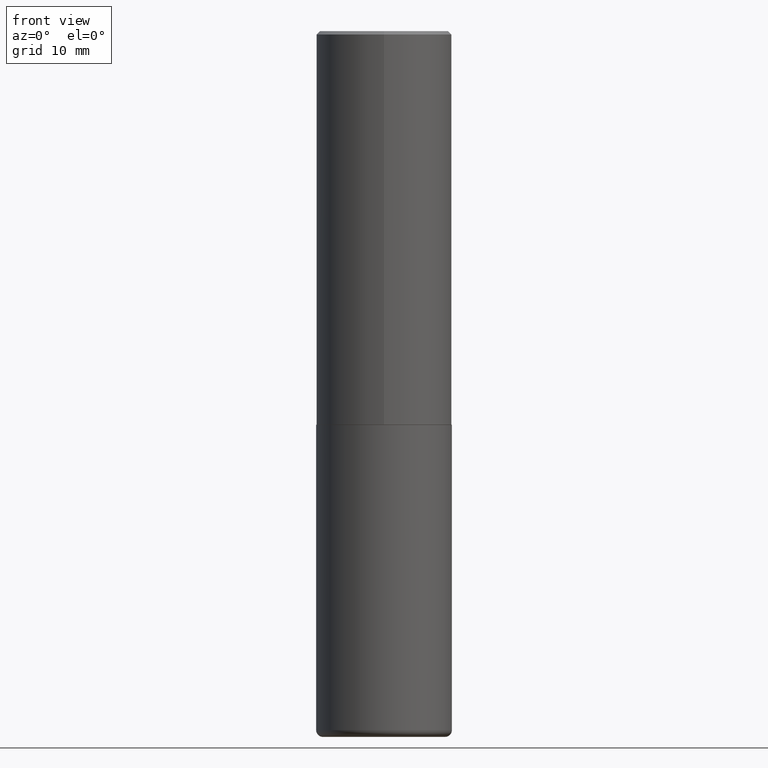
[diagram: clean part render]
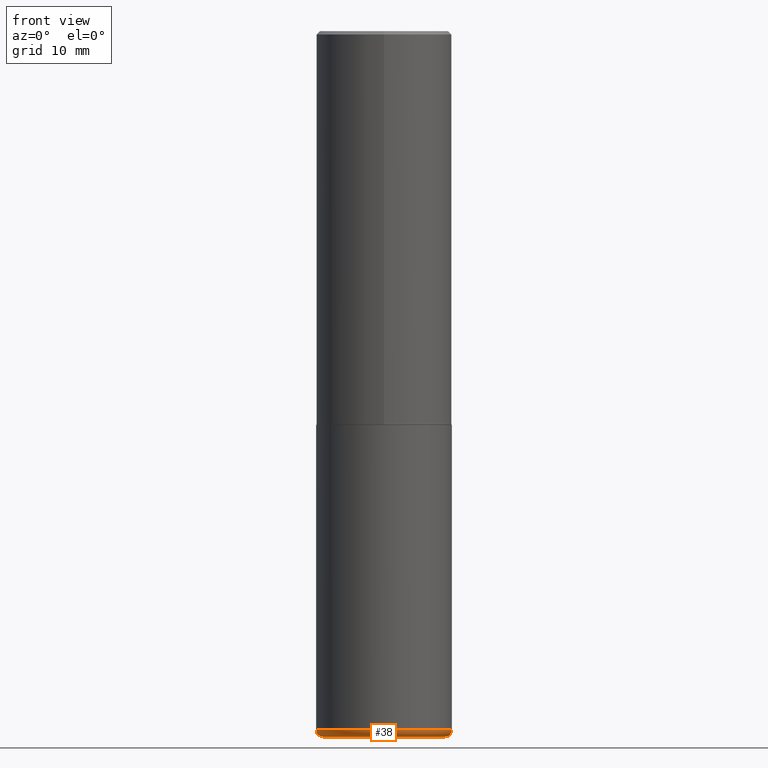
[diagram: same view with one face highlighted and labeled with its STEP entity id]
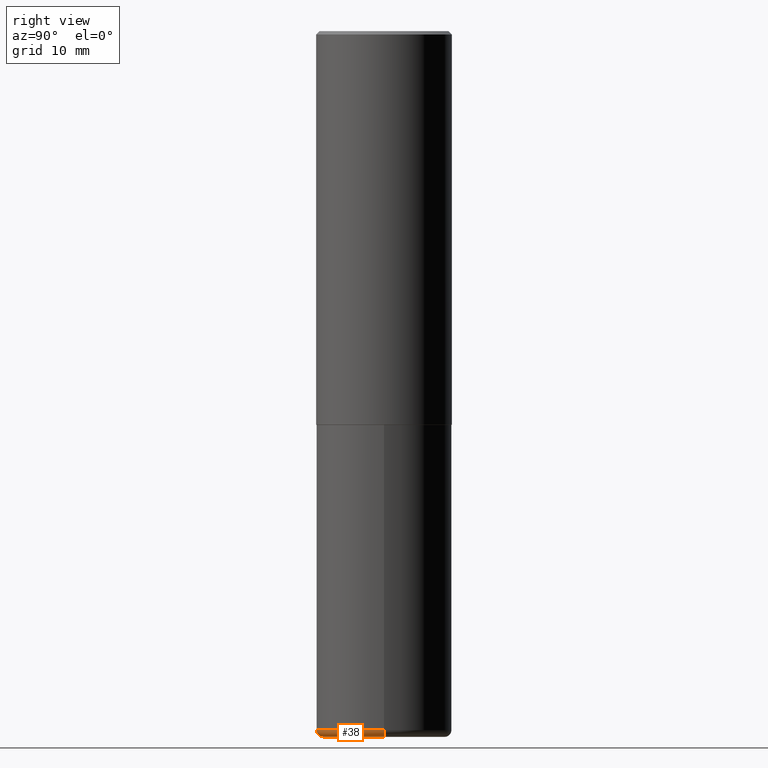
[diagram: same view with one face highlighted and labeled with its STEP entity id]
A machine part, front view. The second image highlights one B-rep face of the part: STEP entity #38.
A second angle (right view) of the same face is appended — the face is thin or edge-on in the first view.
In plain terms, the highlighted toroidal blend (fillet) surface has major radius 8.9992 mm and minor (blend) radius 1.0008 mm.
Its self-contained STEP definition (entity closure, byte-faithful):
#13 = CARTESIAN_POINT ( 'NONE',  ( 9.916620555961347550E-29, -1.415830597714284070E-14, -4.055100000000000371 ) ) ;
#38 = ADVANCED_FACE ( 'NONE', ( #102 ), #56, .T. ) ;
#43 = CARTESIAN_POINT ( 'NONE',  ( -0.3937000000000001054, -1.136089922645532513E-14, -4.055100000000000371 ) ) ;
#55 = VERTEX_POINT ( 'NONE', #204 ) ;
#56 = TOROIDAL_SURFACE ( 'NONE', #205, 0.3543000000000000038, 0.03940000000000005997 ) ;
#67 = ORIENTED_EDGE ( 'NONE', *, *, #405, .T. ) ;
#78 = CARTESIAN_POINT ( 'NONE',  ( -0.3543000000000000038, -1.164085306434480532E-14, -4.055100000000000371 ) ) ;
#84 = DIRECTION ( 'NONE',  ( -2.445468806185136597E-29, 3.491481338843145583E-15, 1.000000000000000000 ) ) ;
#85 = DIRECTION ( 'NONE',  ( -6.982962677686266711E-15, -1.000000000000000000, 3.491481338843145583E-15 ) ) ;
#96 = AXIS2_PLACEMENT_3D ( 'NONE', #409, #85, #256 ) ;
#100 = EDGE_CURVE ( 'NONE', #55, #123, #128, .T. ) ;
#102 = FACE_OUTER_BOUND ( 'NONE', #380, .T. ) ;
#113 = EDGE_CURVE ( 'NONE', #185, #194, #349, .T. ) ;
#121 = EDGE_CURVE ( 'NONE', #55, #185, #359, .T. ) ;
#123 = VERTEX_POINT ( 'NONE', #242 ) ;
#128 = CIRCLE ( 'NONE', #326, 0.3543000000000001148 ) ;
#175 = CARTESIAN_POINT ( 'NONE',  ( 0.3937000000000001054, -1.690749838334792550E-14, -4.055100000000000371 ) ) ;
#185 = VERTEX_POINT ( 'NONE', #43 ) ;
#191 = CIRCLE ( 'NONE', #96, 0.03940000000000005997 ) ;
#194 = VERTEX_POINT ( 'NONE', #175 ) ;
#204 = CARTESIAN_POINT ( 'NONE',  ( -0.3543000000000001148, -1.156965832777527483E-14, -4.094500000000000028 ) ) ;
#205 = AXIS2_PLACEMENT_3D ( 'NONE', #235, #355, #358 ) ;
#211 = DIRECTION ( 'NONE',  ( 7.105427357601001859E-15, 1.000000000000000000, -3.491481338843145583E-15 ) ) ;
#216 = DIRECTION ( 'NONE',  ( 1.000000000000000000, -6.982962677686264344E-15, 0.000000000000000000 ) ) ;
#235 = CARTESIAN_POINT ( 'NONE',  ( 9.916620555961347550E-29, -1.415830597714284070E-14, -4.055100000000000371 ) ) ;
#240 = DIRECTION ( 'NONE',  ( 1.000000000000000000, -6.982962677686267499E-15, 0.000000000000000000 ) ) ;
#242 = CARTESIAN_POINT ( 'NONE',  ( 0.3543000000000001148, -1.676993401859750628E-14, -4.094500000000000028 ) ) ;
#247 = ORIENTED_EDGE ( 'NONE', *, *, #121, .F. ) ;
#248 = AXIS2_PLACEMENT_3D ( 'NONE', #13, #369, #240 ) ;
#256 = DIRECTION ( 'NONE',  ( 1.000000000000000000, -6.982962677686267499E-15, 0.000000000000000000 ) ) ;
#286 = ORIENTED_EDGE ( 'NONE', *, *, #113, .F. ) ;
#296 = ORIENTED_EDGE ( 'NONE', *, *, #100, .T. ) ;
#326 = AXIS2_PLACEMENT_3D ( 'NONE', #414, #84, #216 ) ;
#349 = CIRCLE ( 'NONE', #248, 0.3937000000000000499 ) ;
#355 = DIRECTION ( 'NONE',  ( -2.445468806185136597E-29, 3.491481338843145583E-15, 1.000000000000000000 ) ) ;
#358 = DIRECTION ( 'NONE',  ( 1.000000000000000000, -6.982962677686266711E-15, 4.883557194083112340E-29 ) ) ;
#359 = CIRCLE ( 'NONE', #392, 0.03940000000000005997 ) ;
#369 = DIRECTION ( 'NONE',  ( -2.445468806185136597E-29, 3.491481338843145583E-15, 1.000000000000000000 ) ) ;
#380 = EDGE_LOOP ( 'NONE', ( #247, #296, #67, #286 ) ) ;
#392 = AXIS2_PLACEMENT_3D ( 'NONE', #78, #211, #393 ) ;
#393 = DIRECTION ( 'NONE',  ( -1.000000000000000000, 7.105427357601014480E-15, 0.000000000000000000 ) ) ;
#405 = EDGE_CURVE ( 'NONE', #123, #194, #191, .T. ) ;
#409 = CARTESIAN_POINT ( 'NONE',  ( 0.3543000000000000038, -1.663236965384708391E-14, -4.055100000000000371 ) ) ;
#414 = CARTESIAN_POINT ( 'NONE',  ( 1.001297202692504215E-28, -1.429587034189326149E-14, -4.094500000000000028 ) ) ;